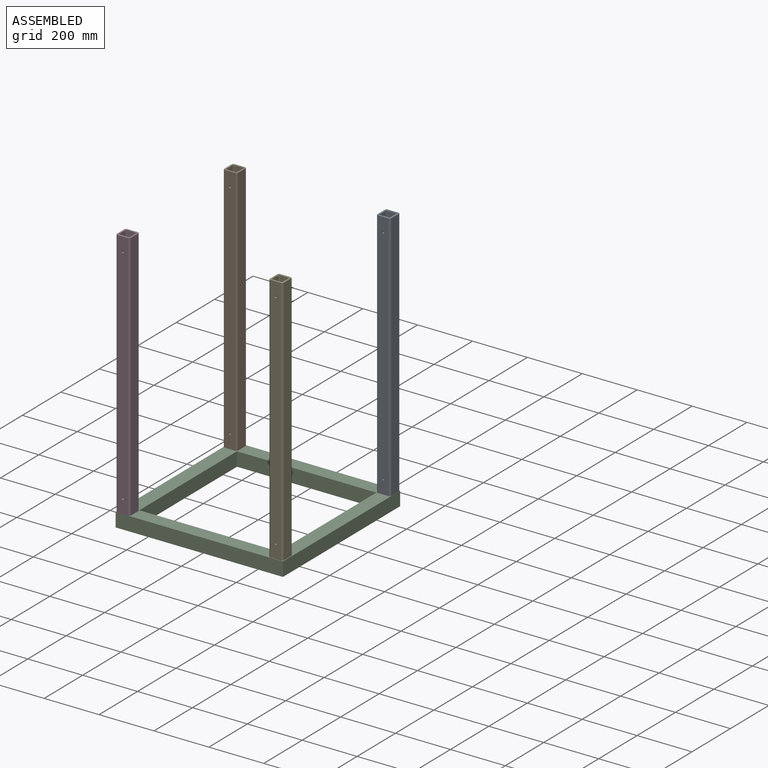
[diagram: assembled view]
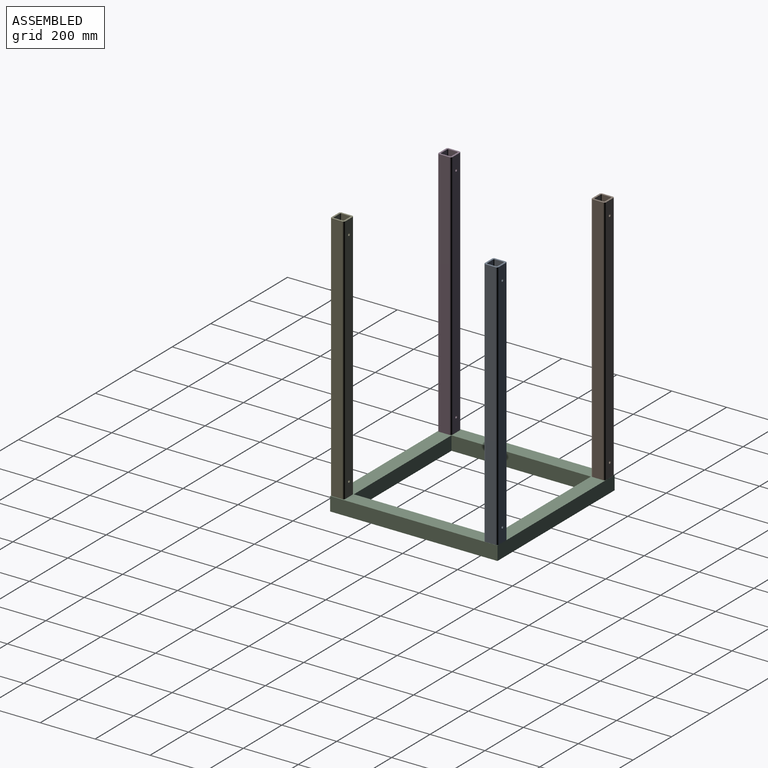
[diagram: assembled view, second angle]
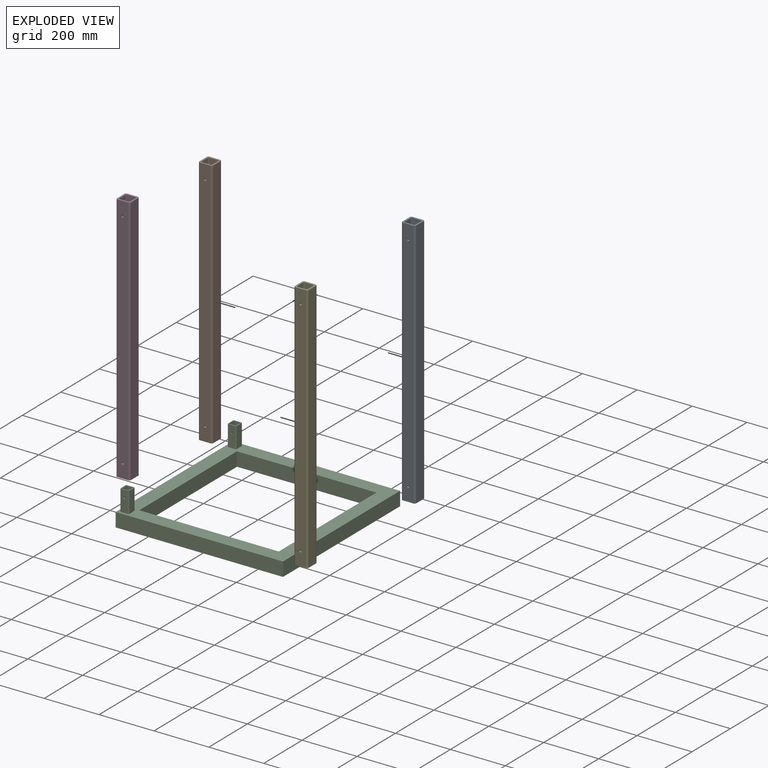
[diagram: exploded view]
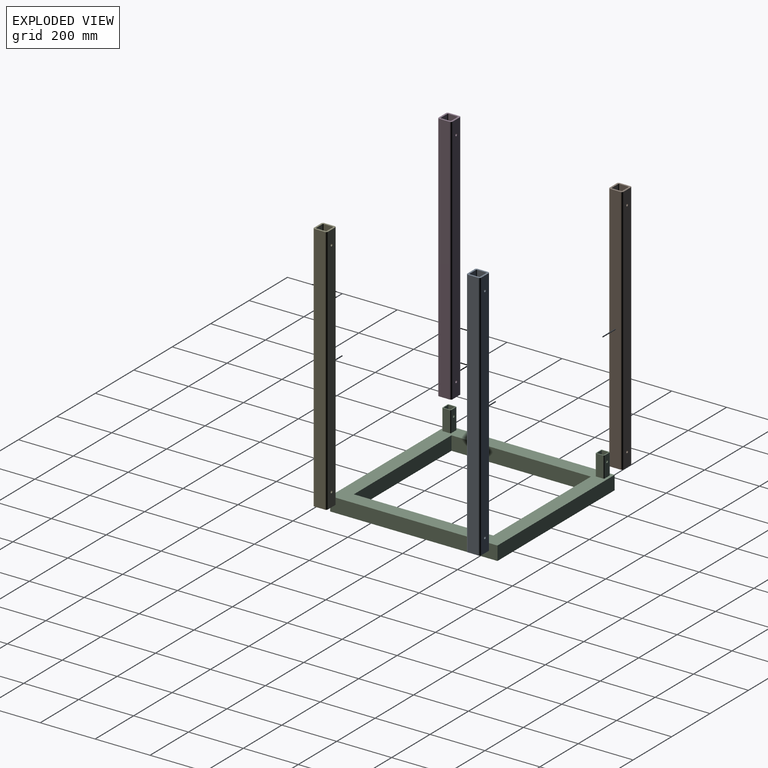
[diagram: exploded view, second angle]
ASSEMBLY  parts=5 mates=2
PART A: 22 faces, bbox 50.8x50.8x914.4 mm
  f0: plane 914.4x38.1mm, normal (1,0,0), area 34838.6mm2, adj f1,f15,f16,f17
  f1: cylinder r=6.35mm len=914.4mm, axis (0,0,-1), area 9120.7mm2, adj f0,f2,f16,f17
  f2: plane 914.4x38.1mm, normal (0,1,0), area 34714.5mm2, adj f1,f3,f16,f17,f18,f20
  f3: cylinder r=6.35mm len=914.4mm, axis (0,0,-1), area 9120.7mm2, adj f2,f4,f16,f17
  f4: plane 914.4x38.1mm, normal (-1,0,0), area 34838.6mm2, adj f3,f5,f16,f17
  f5: cylinder r=6.35mm len=914.4mm, axis (0,0,-1), area 9120.7mm2, adj f4,f6,f16,f17
  f6: plane 914.4x38.1mm, normal (0,-1,0), area 34714.5mm2, adj f5,f15,f16,f17,f19,f21
  f7: cylinder r=3.17mm len=914.4mm, axis (0,0,-1), area 4560.4mm2, adj f8,f14,f16,f17
  f8: plane 914.4x31.75mm, normal (0,1,0), area 28908.1mm2, adj f7,f9,f16,f17,f19,f21
  f9: cylinder r=3.17mm len=914.4mm, axis (0,0,-1), area 4560.4mm2, adj f8,f10,f16,f17
  f10: plane 914.4x31.75mm, normal (1,0,0), area 29032.2mm2, adj f9,f11,f16,f17
  f11: cylinder r=3.17mm len=914.4mm, axis (0,0,-1), area 4560.4mm2, adj f10,f12,f16,f17
  f12: plane 914.4x31.75mm, normal (0,-1,0), area 28908.1mm2, adj f11,f13,f16,f17,f18,f20
  f13: cylinder r=3.17mm len=914.4mm, axis (0,0,-1), area 4560.4mm2, adj f12,f14,f16,f17
  f14: plane 914.4x31.75mm, normal (-1,0,0), area 29032.2mm2, adj f7,f13,f16,f17
  f15: cylinder r=6.35mm len=914.4mm, axis (0,0,-1), area 9120.7mm2, adj f0,f6,f16,f17
  f16: plane 50.8x50.8mm, normal (0,0,1), area 1103.1mm2, adj f0,f1,f2,f3,f4,f5,f6,f7
  f17: plane 50.8x50.8mm, normal (0,0,-1), area 1103.1mm2, adj f0,f1,f2,f3,f4,f5,f6,f7
  f18: cylinder r=4.45mm len=8.89mm, axis (0,-1,0), area 177.3mm2, adj f2,f12
  f19: cylinder r=4.45mm len=8.89mm, axis (0,-1,0), area 177.3mm2, adj f6,f8
  f20: cylinder r=4.45mm len=8.89mm, axis (0,-1,0), area 177.3mm2, adj f2,f12
  f21: cylinder r=4.45mm len=8.89mm, axis (0,-1,0), area 177.3mm2, adj f6,f8
PART B: same geometry as A
PART C: 42 faces, bbox 609.6x609.6x127 mm
  f0: plane 609.6x609.6mm, normal (0,0,1), area 111549.3mm2, adj f1,f2,f3,f4,f5,f6,f7,f8
  f1: plane 508x50.8mm, normal (0,-1,0), area 25806.4mm2, adj f0,f2,f8,f9
  f2: plane 508x50.8mm, normal (-1,0,0), area 25806.4mm2, adj f0,f1,f3,f9
  f3: plane 508x50.8mm, normal (0,1,0), area 25806.4mm2, adj f0,f2,f8,f9
  f4: plane 609.6x50.8mm, normal (1,0,0), area 30967.7mm2, adj f0,f5,f7,f9
  f5: plane 609.6x50.8mm, normal (0,1,0), area 30967.7mm2, adj f0,f4,f6,f9
  f6: plane 609.6x50.8mm, normal (-1,0,0), area 30967.7mm2, adj f0,f5,f7,f9
  f7: plane 609.6x50.8mm, normal (0,-1,0), area 30967.7mm2, adj f0,f4,f6,f9
  f8: plane 508x50.8mm, normal (1,0,0), area 25806.4mm2, adj f0,f1,f3,f9
  f9: plane 609.6x609.6mm, normal (0,0,-1), area 113548.2mm2, adj f1,f2,f3,f4,f5,f6,f7,f8
  f10: plane 76.2x25.4mm, normal (1,0,0), area 1935.5mm2, adj f0,f11,f21,f22
  f11: cylinder r=3.17mm len=76.2mm, axis (0,0,-1), area 380mm2, adj f0,f10,f12,f22
  f12: plane 76.2x25.4mm, normal (0,1,0), area 1873.4mm2, adj f0,f11,f13,f22,f25
  f13: cylinder r=3.17mm len=76.2mm, axis (0,0,-1), area 380mm2, adj f0,f12,f14,f22
  f14: plane 76.2x25.4mm, normal (-1,0,0), area 1935.5mm2, adj f0,f13,f15,f22
  f15: cylinder r=3.17mm len=76.2mm, axis (0,0,-1), area 380mm2, adj f0,f14,f16,f22
  f16: plane 76.2x25.4mm, normal (0,-1,0), area 1873.4mm2, adj f0,f15,f21,f22,f24
  f17: plane 76.2x25.4mm, normal (0,-1,0), area 1873.4mm2, adj f18,f20,f22,f23,f25
  f18: plane 76.2x25.4mm, normal (-1,0,0), area 1935.5mm2, adj f17,f19,f22,f23
  f19: plane 76.2x25.4mm, normal (0,1,0), area 1873.4mm2, adj f18,f20,f22,f23,f24
  f20: plane 76.2x25.4mm, normal (1,0,0), area 1935.5mm2, adj f17,f19,f22,f23
  f21: cylinder r=3.17mm len=76.2mm, axis (0,0,-1), area 380mm2, adj f0,f10,f16,f22
  f22: plane 31.75x31.75mm, normal (0,0,1), area 354.2mm2, adj f10,f11,f12,f13,f14,f15,f16,f17
  f23: plane 25.4x25.4mm, normal (0,0,1), area 645.2mm2, adj f17,f18,f19,f20
  f24: cylinder r=4.45mm len=8.89mm, axis (0,-1,0), area 88.7mm2, adj f16,f19
  f25: cylinder r=4.45mm len=8.89mm, axis (0,-1,0), area 88.7mm2, adj f12,f17
  f26: plane 76.2x25.4mm, normal (0,-1,0), area 1873.4mm2, adj f27,f37,f38,f39,f40
  f27: plane 76.2x25.4mm, normal (-1,0,0), area 1935.5mm2, adj f26,f28,f38,f39
  f28: plane 76.2x25.4mm, normal (0,1,0), area 1873.4mm2, adj f27,f37,f38,f39,f41
  f29: plane 76.2x25.4mm, normal (0,-1,0), area 1873.4mm2, adj f0,f30,f36,f38,f41
  f30: cylinder r=3.17mm len=76.2mm, axis (0,0,-1), area 380mm2, adj f0,f29,f31,f38
  f31: plane 76.2x25.4mm, normal (1,0,0), area 1935.5mm2, adj f0,f30,f32,f38
  f32: cylinder r=3.17mm len=76.2mm, axis (0,0,-1), area 380mm2, adj f0,f31,f33,f38
  f33: plane 76.2x25.4mm, normal (0,1,0), area 1873.4mm2, adj f0,f32,f34,f38,f40
  f34: cylinder r=3.17mm len=76.2mm, axis (0,0,-1), area 380mm2, adj f0,f33,f35,f38
  f35: plane 76.2x25.4mm, normal (-1,0,0), area 1935.5mm2, adj f0,f34,f36,f38
  f36: cylinder r=3.17mm len=76.2mm, axis (0,0,-1), area 380mm2, adj f0,f29,f35,f38
  f37: plane 76.2x25.4mm, normal (1,0,0), area 1935.5mm2, adj f26,f28,f38,f39
  f38: plane 31.75x31.75mm, normal (0,0,1), area 354.2mm2, adj f26,f27,f28,f29,f30,f31,f32,f33
  f39: plane 25.4x25.4mm, normal (0,0,1), area 645.2mm2, adj f26,f27,f28,f37
  f40: cylinder r=4.45mm len=8.89mm, axis (0,-1,0), area 88.7mm2, adj f26,f33
  f41: cylinder r=4.45mm len=8.89mm, axis (0,-1,0), area 88.7mm2, adj f28,f29
PART D: same geometry as A
PART E: same geometry as A
PLACE A t=(90.1,461.33,-77.49)mm
PLACE B t=(-468.37,461.32,-77.35)mm
PLACE C t=(-188.98,181.83,-128.41)mm
PLACE D t=(-467.75,-97.57,-77.61)mm
PLACE E t=(89.64,-97.95,-76.41)mm
MATE planar C.f0 <-> D.f17  axis (0,0,1) through (-442.98,-72.17,-77.61)mm
MATE planar D.f6 <-> C.f7  axis (0,-1,0) through (-467.75,-122.97,379.59)mm
